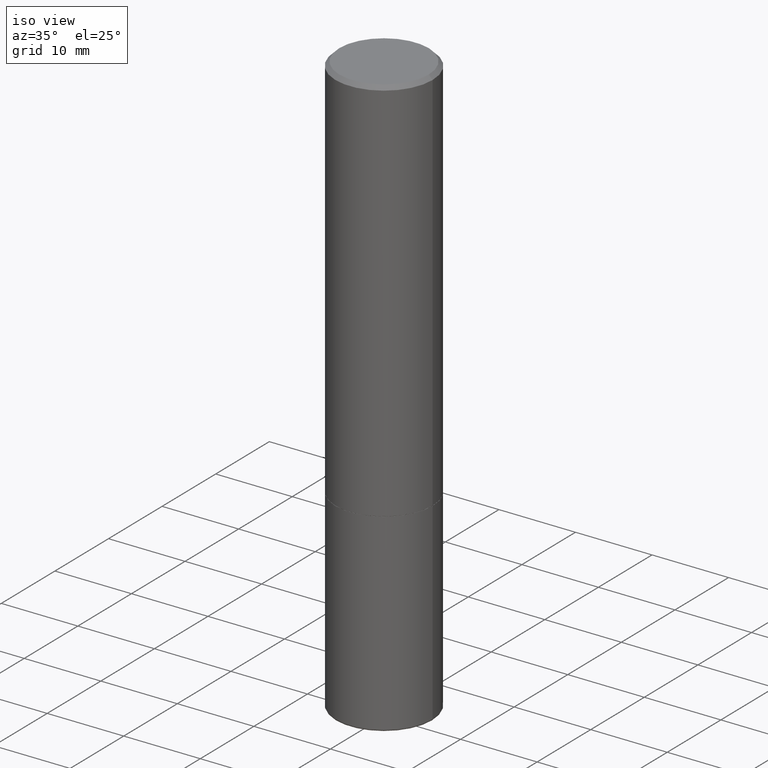
[diagram: clean part render]
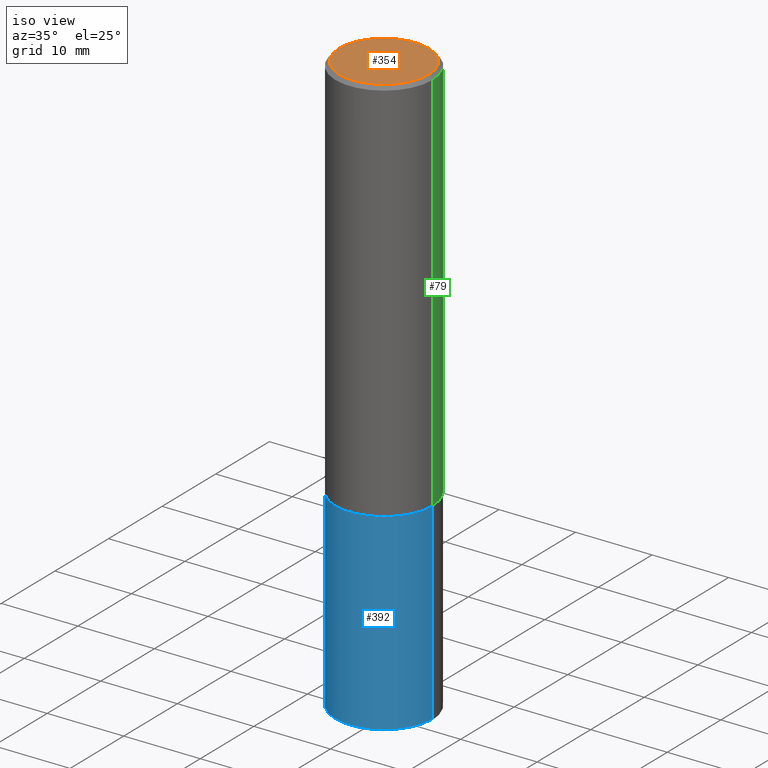
[diagram: same view with three faces highlighted in distinct colors, each labeled with its STEP entity id]
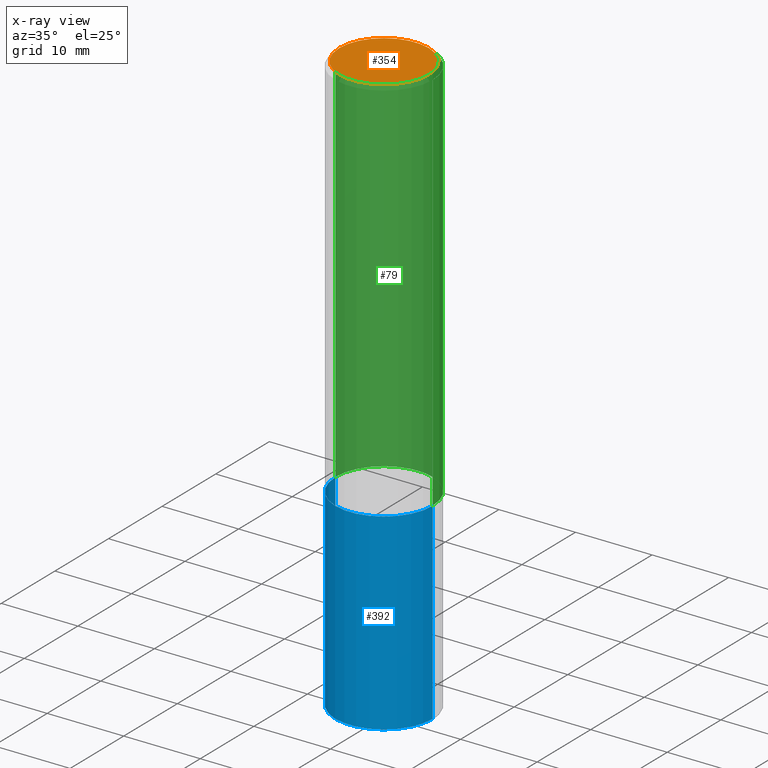
[diagram: x-ray of the same camera — body ghosted, the three highlighted faces saturated]
A machine part, iso view with three faces highlighted in distinct colors.
The next image is the same camera in x-ray (body ghosted, the three faces saturated) — at least one of them is partly hidden behind the body in this view.
Their STEP definitions:

[orange] entity #354 — the highlighted planar face has unit normal (0, -0, -1).
#14 = AXIS2_PLACEMENT_3D ( 'NONE', #328, #264, #72 ) ;
#18 = EDGE_LOOP ( 'NONE', ( #125, #319 ) ) ;
#26 = CIRCLE ( 'NONE', #300, 0.2299999999999999267 ) ;
#42 = FACE_OUTER_BOUND ( 'NONE', #18, .T. ) ;
#47 = VERTEX_POINT ( 'NONE', #152 ) ;
#54 = VERTEX_POINT ( 'NONE', #98 ) ;
#57 = DIRECTION ( 'NONE',  ( -2.445468806185136597E-29, 3.491481338843145583E-15, 1.000000000000000000 ) ) ;
#72 = DIRECTION ( 'NONE',  ( -1.000000000000000000, 6.982962677686265922E-15, -4.876176775795935793E-29 ) ) ;
#87 = AXIS2_PLACEMENT_3D ( 'NONE', #353, #225, #167 ) ;
#98 = CARTESIAN_POINT ( 'NONE',  ( 0.2299999999999999267, -1.681434332853598617E-15, 4.695363739111602110E-17 ) ) ;
#107 = EDGE_CURVE ( 'NONE', #54, #47, #26, .T. ) ;
#125 = ORIENTED_EDGE ( 'NONE', *, *, #180, .T. ) ;
#152 = CARTESIAN_POINT ( 'NONE',  ( -0.2299999999999999267, 1.640996229256272519E-15, 4.695363739109317495E-17 ) ) ;
#162 = CARTESIAN_POINT ( 'NONE',  ( -1.148236555768741665E-45, 1.639377487418492057E-31, 4.695363739110452099E-17 ) ) ;
#167 = DIRECTION ( 'NONE',  ( 1.000000000000000000, -6.982962677686267499E-15, 4.875813741439101456E-29 ) ) ;
#180 = EDGE_CURVE ( 'NONE', #47, #54, #266, .T. ) ;
#206 = PLANE ( 'NONE',  #14 ) ;
#223 = DIRECTION ( 'NONE',  ( 1.000000000000000000, -6.982962677686267499E-15, 4.875813741439101456E-29 ) ) ;
#225 = DIRECTION ( 'NONE',  ( -2.445468806185136597E-29, 3.491481338843145583E-15, 1.000000000000000000 ) ) ;
#264 = DIRECTION ( 'NONE',  ( 2.438088387897960049E-29, -3.491481338843145188E-15, -1.000000000000000000 ) ) ;
#266 = CIRCLE ( 'NONE', #87, 0.2299999999999999267 ) ;
#300 = AXIS2_PLACEMENT_3D ( 'NONE', #162, #57, #223 ) ;
#319 = ORIENTED_EDGE ( 'NONE', *, *, #107, .T. ) ;
#328 = CARTESIAN_POINT ( 'NONE',  ( 1.606081415867840870E-15, 0.2299999999999999267, -7.795638892383710465E-16 ) ) ;
#353 = CARTESIAN_POINT ( 'NONE',  ( -1.148236555768741665E-45, 1.639377487418492057E-31, 4.695363739110452099E-17 ) ) ;
#354 = ADVANCED_FACE ( 'NONE', ( #42 ), #206, .F. ) ;

[blue] entity #392 — the highlighted cylindrical surface (partial cylindrical patch) has radius 6.35 mm, axis along (-0, 0, 1).
#6 = AXIS2_PLACEMENT_3D ( 'NONE', #289, #195, #256 ) ;
#9 = CARTESIAN_POINT ( 'NONE',  ( -0.2500000000000000000, 1.776356839400250465E-15, -1.229733772563726445E-29 ) ) ;
#11 = ORIENTED_EDGE ( 'NONE', *, *, #242, .F. ) ;
#41 = ORIENTED_EDGE ( 'NONE', *, *, #408, .T. ) ;
#69 = CARTESIAN_POINT ( 'NONE',  ( -0.2500000000000000000, -6.934889101013398653E-15, -2.000000000000000444 ) ) ;
#74 = CARTESIAN_POINT ( 'NONE',  ( 0.000000000000000000, 0.000000000000000000, 0.000000000000000000 ) ) ;
#122 = CIRCLE ( 'NONE', #6, 0.2500000000000000000 ) ;
#123 = AXIS2_PLACEMENT_3D ( 'NONE', #74, #202, #326 ) ;
#143 = FACE_OUTER_BOUND ( 'NONE', #144, .T. ) ;
#144 = EDGE_LOOP ( 'NONE', ( #11, #367, #41, #161 ) ) ;
#145 = LINE ( 'NONE', #9, #371 ) ;
#161 = ORIENTED_EDGE ( 'NONE', *, *, #249, .F. ) ;
#172 = EDGE_CURVE ( 'NONE', #298, #403, #122, .T. ) ;
#174 = LINE ( 'NONE', #230, #294 ) ;
#176 = DIRECTION ( 'NONE',  ( 1.000000000000000000, -6.982962677686266711E-15, 0.000000000000000000 ) ) ;
#179 = DIRECTION ( 'NONE',  ( -2.445468806185136877E-29, 3.491481338843145188E-15, 1.000000000000000000 ) ) ;
#195 = DIRECTION ( 'NONE',  ( -2.445468806185136597E-29, 3.491481338843145583E-15, 1.000000000000000000 ) ) ;
#202 = DIRECTION ( 'NONE',  ( -2.445468806185136597E-29, 3.491481338843145583E-15, 1.000000000000000000 ) ) ;
#230 = CARTESIAN_POINT ( 'NONE',  ( 0.2500000000000000000, -1.745740669421566678E-15, 1.219044193948983948E-29 ) ) ;
#232 = CYLINDRICAL_SURFACE ( 'NONE', #123, 0.2500000000000000000 ) ;
#234 = CIRCLE ( 'NONE', #342, 0.2500000000000000000 ) ;
#239 = CARTESIAN_POINT ( 'NONE',  ( -0.2499999999999998890, -8.663172363740755817E-15, -2.990000000000000213 ) ) ;
#242 = EDGE_CURVE ( 'NONE', #298, #362, #145, .T. ) ;
#245 = VERTEX_POINT ( 'NONE', #269 ) ;
#249 = EDGE_CURVE ( 'NONE', #362, #245, #234, .T. ) ;
#256 = DIRECTION ( 'NONE',  ( 1.000000000000000000, -6.982962677686262766E-15, 0.000000000000000000 ) ) ;
#267 = CARTESIAN_POINT ( 'NONE',  ( 0.2499999999999998890, -1.218526987256257138E-14, -2.990000000000000213 ) ) ;
#269 = CARTESIAN_POINT ( 'NONE',  ( 0.2500000000000000000, -8.728703347107858632E-15, -2.000000000000000444 ) ) ;
#289 = CARTESIAN_POINT ( 'NONE',  ( 7.311951730493558245E-29, -1.043952920314100628E-14, -2.990000000000000213 ) ) ;
#294 = VECTOR ( 'NONE', #390, 39.37007874015748143 ) ;
#298 = VERTEX_POINT ( 'NONE', #239 ) ;
#301 = DIRECTION ( 'NONE',  ( -2.445468806185136597E-29, 3.491481338843145583E-15, 1.000000000000000000 ) ) ;
#326 = DIRECTION ( 'NONE',  ( 1.000000000000000000, -6.982962677686266711E-15, 4.876176775795935793E-29 ) ) ;
#342 = AXIS2_PLACEMENT_3D ( 'NONE', #388, #301, #176 ) ;
#362 = VERTEX_POINT ( 'NONE', #69 ) ;
#367 = ORIENTED_EDGE ( 'NONE', *, *, #172, .T. ) ;
#371 = VECTOR ( 'NONE', #179, 39.37007874015748143 ) ;
#388 = CARTESIAN_POINT ( 'NONE',  ( 4.890937612370273754E-29, -6.982962677686291954E-15, -2.000000000000000444 ) ) ;
#390 = DIRECTION ( 'NONE',  ( -2.445468806185136877E-29, 3.491481338843145188E-15, 1.000000000000000000 ) ) ;
#392 = ADVANCED_FACE ( 'NONE', ( #143 ), #232, .T. ) ;
#403 = VERTEX_POINT ( 'NONE', #267 ) ;
#408 = EDGE_CURVE ( 'NONE', #403, #245, #174, .T. ) ;

[green] entity #79 — the highlighted cylindrical surface (partial cylindrical patch) has radius 6.35 mm, axis along (-0, 0, 1).
#10 = DIRECTION ( 'NONE',  ( 1.000000000000000000, -6.982962677686268288E-15, 0.000000000000000000 ) ) ;
#34 = ORIENTED_EDGE ( 'NONE', *, *, #349, .T. ) ;
#39 = LINE ( 'NONE', #110, #203 ) ;
#55 = CIRCLE ( 'NONE', #94, 0.2500000000000000000 ) ;
#59 = CARTESIAN_POINT ( 'NONE',  ( 0.000000000000000000, 0.000000000000000000, 0.000000000000000000 ) ) ;
#73 = ORIENTED_EDGE ( 'NONE', *, *, #368, .T. ) ;
#78 = VERTEX_POINT ( 'NONE', #382 ) ;
#79 = ADVANCED_FACE ( 'NONE', ( #253 ), #97, .T. ) ;
#94 = AXIS2_PLACEMENT_3D ( 'NONE', #360, #295, #108 ) ;
#97 = CYLINDRICAL_SURFACE ( 'NONE', #383, 0.2500000000000001110 ) ;
#100 = DIRECTION ( 'NONE',  ( -2.445468806185136597E-29, 3.491481338843145583E-15, 1.000000000000000000 ) ) ;
#106 = DIRECTION ( 'NONE',  ( -2.445468806185136597E-29, 3.491481338843145583E-15, 1.000000000000000000 ) ) ;
#108 = DIRECTION ( 'NONE',  ( 1.000000000000000000, -6.982962677686266711E-15, 0.000000000000000000 ) ) ;
#110 = CARTESIAN_POINT ( 'NONE',  ( -0.2500000000000001110, 1.776356839400251254E-15, -1.229733772563727146E-29 ) ) ;
#128 = LINE ( 'NONE', #131, #395 ) ;
#131 = CARTESIAN_POINT ( 'NONE',  ( 0.2500000000000001110, -1.745740669421567664E-15, 1.219044193948984649E-29 ) ) ;
#137 = CARTESIAN_POINT ( 'NONE',  ( -0.2500000000000002220, -1.748293572161901516E-15, -1.999000000000000110 ) ) ;
#141 = VERTEX_POINT ( 'NONE', #137 ) ;
#147 = EDGE_CURVE ( 'NONE', #333, #78, #128, .T. ) ;
#177 = ORIENTED_EDGE ( 'NONE', *, *, #336, .F. ) ;
#178 = AXIS2_PLACEMENT_3D ( 'NONE', #205, #106, #10 ) ;
#203 = VECTOR ( 'NONE', #358, 39.37007874015748143 ) ;
#205 = CARTESIAN_POINT ( 'NONE',  ( 4.888492143564088712E-29, -6.979471196347448158E-15, -1.999000000000000110 ) ) ;
#216 = ORIENTED_EDGE ( 'NONE', *, *, #147, .F. ) ;
#253 = FACE_OUTER_BOUND ( 'NONE', #276, .T. ) ;
#261 = CARTESIAN_POINT ( 'NONE',  ( 0.2500000000000002220, -8.725211865769017202E-15, -1.999000000000000110 ) ) ;
#276 = EDGE_LOOP ( 'NONE', ( #73, #34, #177, #216 ) ) ;
#295 = DIRECTION ( 'NONE',  ( -2.445468806185136597E-29, 3.491481338843145583E-15, 1.000000000000000000 ) ) ;
#321 = DIRECTION ( 'NONE',  ( -2.445468806185136877E-29, 3.491481338843145188E-15, 1.000000000000000000 ) ) ;
#333 = VERTEX_POINT ( 'NONE', #261 ) ;
#335 = CARTESIAN_POINT ( 'NONE',  ( -0.2500000000000000000, 1.675911042644703577E-15, -0.02000000000000005593 ) ) ;
#336 = EDGE_CURVE ( 'NONE', #78, #345, #55, .T. ) ;
#345 = VERTEX_POINT ( 'NONE', #335 ) ;
#349 = EDGE_CURVE ( 'NONE', #141, #345, #39, .T. ) ;
#358 = DIRECTION ( 'NONE',  ( -2.445468806185136877E-29, 3.491481338843145188E-15, 1.000000000000000000 ) ) ;
#360 = CARTESIAN_POINT ( 'NONE',  ( 4.890937612370287172E-31, -6.982962677686310098E-17, -0.02000000000000005593 ) ) ;
#368 = EDGE_CURVE ( 'NONE', #333, #141, #396, .T. ) ;
#382 = CARTESIAN_POINT ( 'NONE',  ( 0.2500000000000000000, -1.784954126219746189E-15, -0.02000000000000005593 ) ) ;
#383 = AXIS2_PLACEMENT_3D ( 'NONE', #59, #100, #412 ) ;
#395 = VECTOR ( 'NONE', #321, 39.37007874015748143 ) ;
#396 = CIRCLE ( 'NONE', #178, 0.2500000000000002220 ) ;
#412 = DIRECTION ( 'NONE',  ( 1.000000000000000000, -6.982962677686267499E-15, 4.876176775795936353E-29 ) ) ;